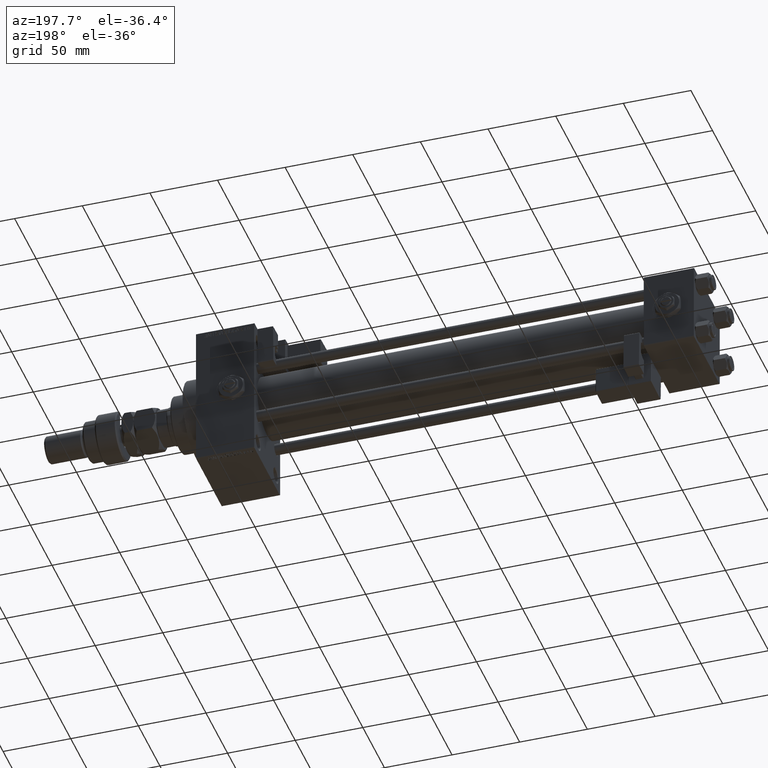
[diagram: clean part render]
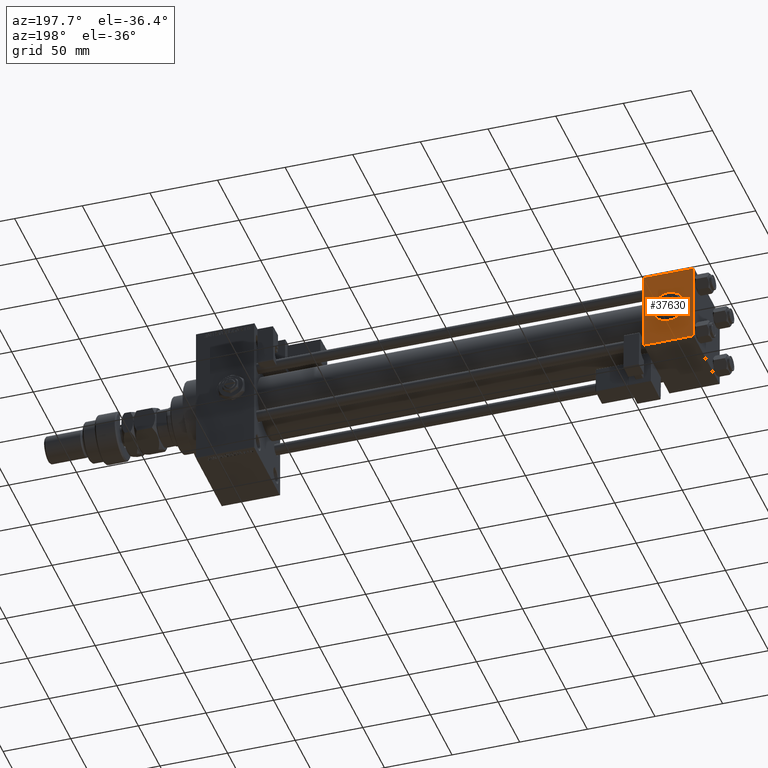
[diagram: same view with one face highlighted and labeled with its STEP entity id]
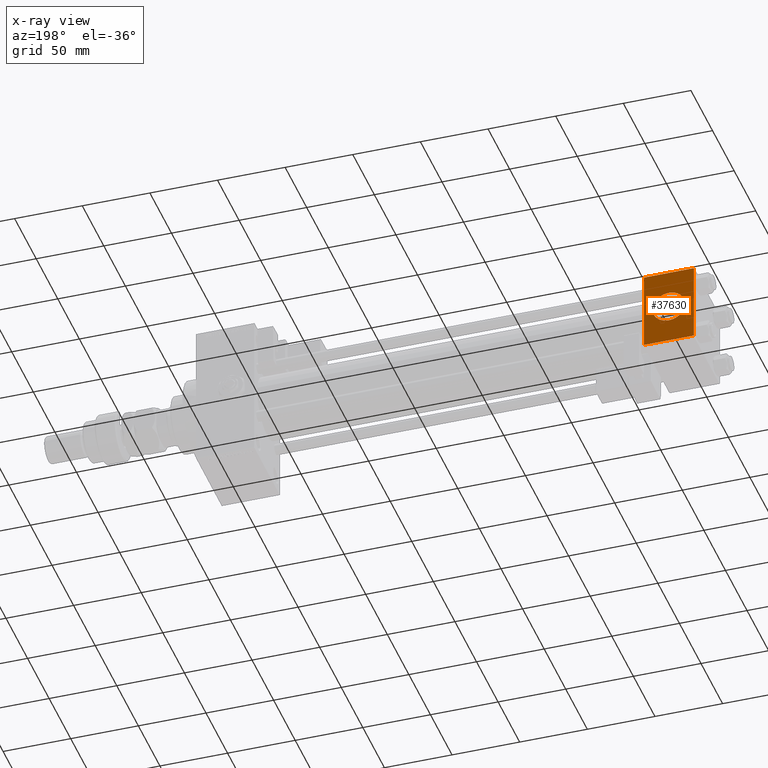
[diagram: x-ray of the same camera — body ghosted, the highlighted face saturated]
A machine part, auxiliary view. The second image highlights one B-rep face of the part: STEP entity #37630.
The next image is the same camera in x-ray: the body ghosted, the highlighted face saturated — about 0% of this face is hidden behind the body in this view.
In plain terms, the highlighted planar face has unit normal (0, 1, 0).
Its self-contained STEP definition (entity closure, byte-faithful):
#910 = ORIENTED_EDGE ( 'NONE', *, *, #18092, .F. ) ;
#1454 = EDGE_LOOP ( 'NONE', ( #52139, #910 ) ) ;
#2201 = CARTESIAN_POINT ( 'NONE',  ( 18.50000000000000000, 29.99999999999999289, 0.000000000000000000 ) ) ;
#4257 = DIRECTION ( 'NONE',  ( 1.000000000000000000, 0.000000000000000000, 0.000000000000000000 ) ) ;
#4620 = VECTOR ( 'NONE', #40353, 1000.000000000000000 ) ;
#5025 = VECTOR ( 'NONE', #50586, 1000.000000000000000 ) ;
#7000 = CARTESIAN_POINT ( 'NONE',  ( 18.50000000000000000, 29.99999999999999289, 0.000000000000000000 ) ) ;
#7762 = VERTEX_POINT ( 'NONE', #10152 ) ;
#9107 = AXIS2_PLACEMENT_3D ( 'NONE', #7000, #14977, #49569 ) ;
#10152 = CARTESIAN_POINT ( 'NONE',  ( 37.00000000000000000, 29.99999999999999289, 29.50000000000000000 ) ) ;
#11479 = DIRECTION ( 'NONE',  ( 0.000000000000000000, 0.000000000000000000, -1.000000000000000000 ) ) ;
#13067 = CARTESIAN_POINT ( 'NONE',  ( 37.00000000000000000, 29.99999999999999289, 29.50000000000000000 ) ) ;
#14857 = DIRECTION ( 'NONE',  ( 0.000000000000000000, 1.000000000000000000, 0.000000000000000000 ) ) ;
#14907 = CARTESIAN_POINT ( 'NONE',  ( 37.00000000000000000, 29.99999999999999289, -29.50000000000000000 ) ) ;
#14977 = DIRECTION ( 'NONE',  ( 0.000000000000000000, 1.000000000000000000, 0.000000000000000000 ) ) ;
#16031 = ORIENTED_EDGE ( 'NONE', *, *, #29244, .T. ) ;
#17512 = VERTEX_POINT ( 'NONE', #14907 ) ;
#18092 = EDGE_CURVE ( 'NONE', #49240, #22947, #43714, .T. ) ;
#19706 = LINE ( 'NONE', #20246, #50359 ) ;
#20246 = CARTESIAN_POINT ( 'NONE',  ( 37.00000000000000000, 29.99999999999999289, 30.00000000000000000 ) ) ;
#20494 = CARTESIAN_POINT ( 'NONE',  ( 0.000000000000000000, 29.99999999999999289, -29.50000000000000000 ) ) ;
#22947 = VERTEX_POINT ( 'NONE', #49452 ) ;
#24133 = LINE ( 'NONE', #36505, #4620 ) ;
#24891 = VECTOR ( 'NONE', #4257, 1000.000000000000000 ) ;
#25144 = ORIENTED_EDGE ( 'NONE', *, *, #41791, .F. ) ;
#25598 = FACE_OUTER_BOUND ( 'NONE', #48044, .T. ) ;
#25868 = DIRECTION ( 'NONE',  ( -0.000000000000000000, 1.000000000000000000, 0.000000000000000000 ) ) ;
#28064 = CARTESIAN_POINT ( 'NONE',  ( 18.50000000000000000, 29.99999999999999289, -12.00000000000000178 ) ) ;
#28562 = AXIS2_PLACEMENT_3D ( 'NONE', #38236, #25868, #47012 ) ;
#29244 = EDGE_CURVE ( 'NONE', #52636, #7762, #41910, .T. ) ;
#29718 = ORIENTED_EDGE ( 'NONE', *, *, #34632, .T. ) ;
#30352 = EDGE_CURVE ( 'NONE', #17512, #30959, #24133, .T. ) ;
#30655 = AXIS2_PLACEMENT_3D ( 'NONE', #2201, #14857, #49453 ) ;
#30959 = VERTEX_POINT ( 'NONE', #20494 ) ;
#31957 = EDGE_CURVE ( 'NONE', #22947, #49240, #32776, .T. ) ;
#32776 = CIRCLE ( 'NONE', #9107, 12.00000000000000178 ) ;
#33588 = CARTESIAN_POINT ( 'NONE',  ( 0.000000000000000000, 29.99999999999999289, 29.50000000000000000 ) ) ;
#34632 = EDGE_CURVE ( 'NONE', #7762, #17512, #19706, .T. ) ;
#34642 = PLANE ( 'NONE',  #28562 ) ;
#36505 = CARTESIAN_POINT ( 'NONE',  ( 37.00000000000000000, 29.99999999999999289, -29.50000000000000000 ) ) ;
#37144 = CARTESIAN_POINT ( 'NONE',  ( 0.000000000000000000, 29.99999999999999289, 30.00000000000000000 ) ) ;
#37630 = ADVANCED_FACE ( 'NONE', ( #46480, #25598 ), #34642, .T. ) ;
#38236 = CARTESIAN_POINT ( 'NONE',  ( 37.00000000000000000, 29.99999999999999289, 30.00000000000000000 ) ) ;
#40353 = DIRECTION ( 'NONE',  ( -1.000000000000000000, 0.000000000000000000, 0.000000000000000000 ) ) ;
#41791 = EDGE_CURVE ( 'NONE', #52636, #30959, #42343, .T. ) ;
#41910 = LINE ( 'NONE', #13067, #24891 ) ;
#42343 = LINE ( 'NONE', #37144, #5025 ) ;
#43714 = CIRCLE ( 'NONE', #30655, 12.00000000000000178 ) ;
#46480 = FACE_BOUND ( 'NONE', #1454, .T. ) ;
#46530 = ORIENTED_EDGE ( 'NONE', *, *, #30352, .T. ) ;
#47012 = DIRECTION ( 'NONE',  ( 0.000000000000000000, -0.000000000000000000, 1.000000000000000000 ) ) ;
#48044 = EDGE_LOOP ( 'NONE', ( #29718, #46530, #25144, #16031 ) ) ;
#49240 = VERTEX_POINT ( 'NONE', #28064 ) ;
#49452 = CARTESIAN_POINT ( 'NONE',  ( 18.50000000000000000, 29.99999999999999289, 12.00000000000000178 ) ) ;
#49453 = DIRECTION ( 'NONE',  ( 0.000000000000000000, 0.000000000000000000, 1.000000000000000000 ) ) ;
#49569 = DIRECTION ( 'NONE',  ( 0.000000000000000000, 0.000000000000000000, 1.000000000000000000 ) ) ;
#50359 = VECTOR ( 'NONE', #11479, 1000.000000000000000 ) ;
#50586 = DIRECTION ( 'NONE',  ( 0.000000000000000000, 0.000000000000000000, -1.000000000000000000 ) ) ;
#52139 = ORIENTED_EDGE ( 'NONE', *, *, #31957, .F. ) ;
#52636 = VERTEX_POINT ( 'NONE', #33588 ) ;